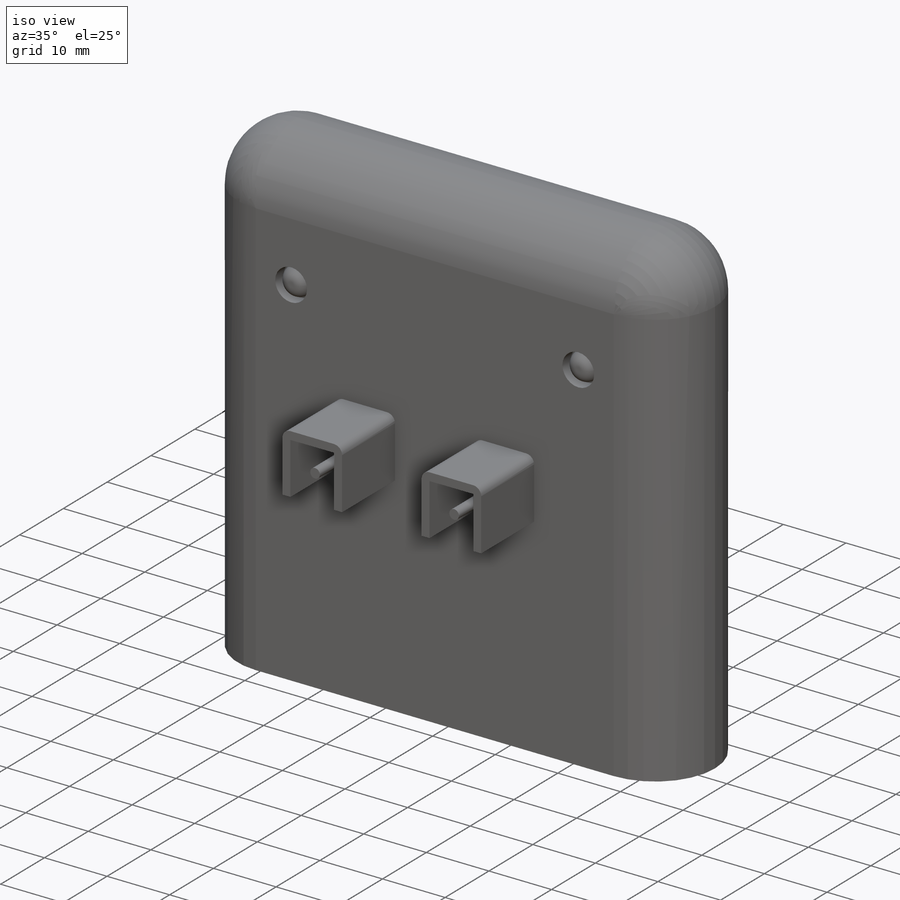
[diagram: iso view]
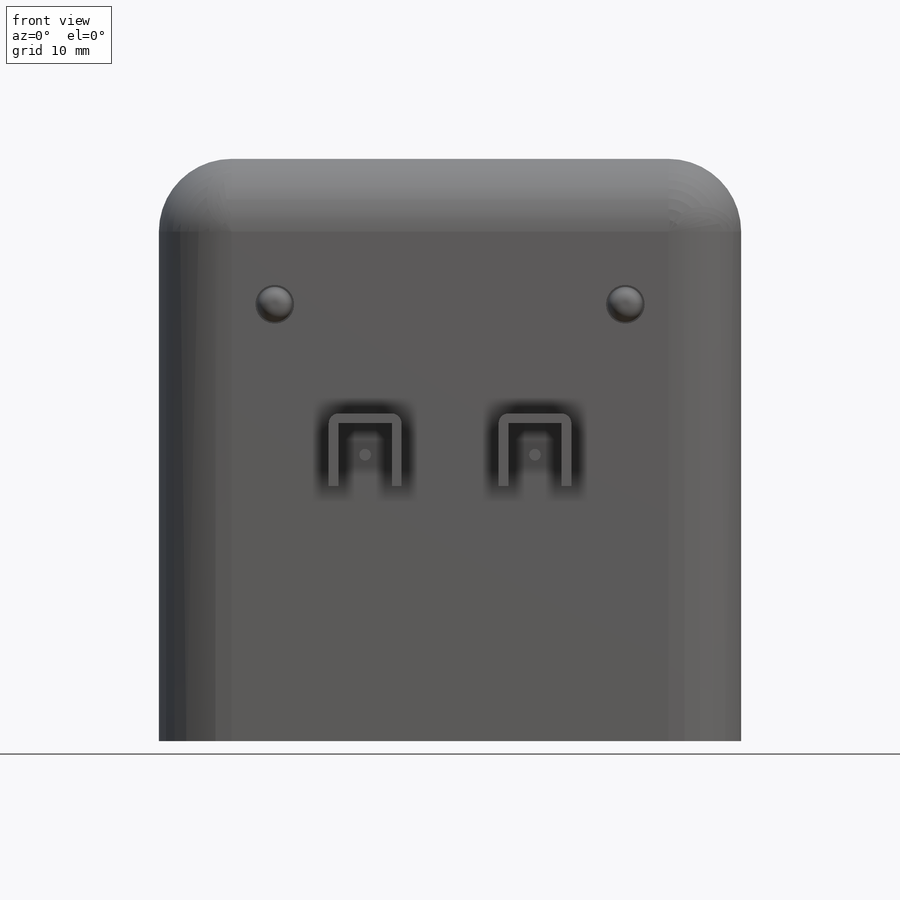
[diagram: front view]
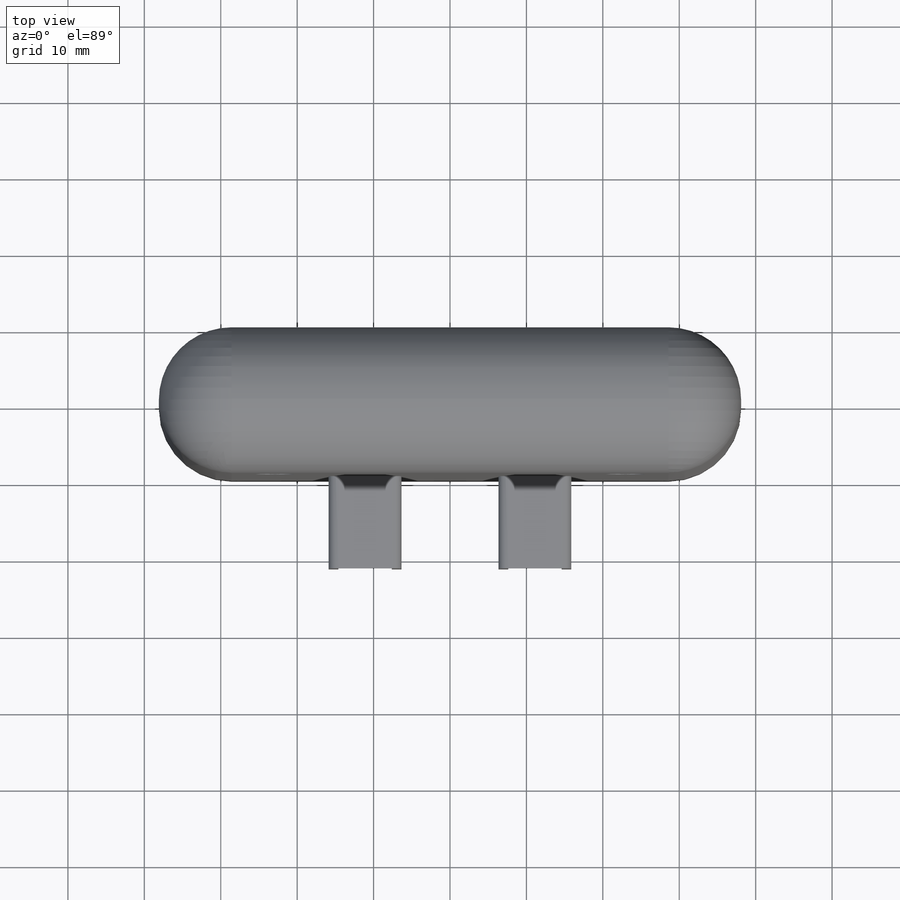
[diagram: top view]
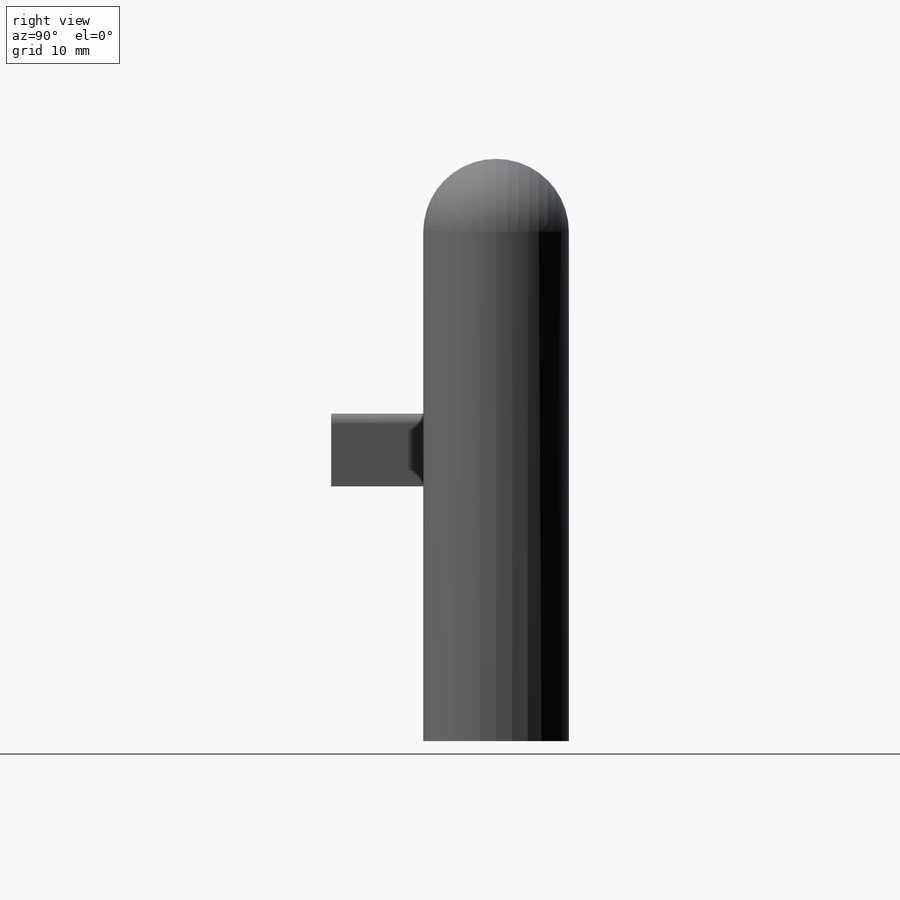
[diagram: right view]
SOLIDWORKS PART (.sldprt)
format: sldprt  version: not decoded by parser v0  size: 326,656 bytes
history: native  units: mm
features: fillet x6, sketch x5, extrude x4, material x1, cut_extrude x1 (+14 scaffold rows collapsed)
feature tree (31):
  scaffold x14  (default folders/planes/origin — collapsed)
  material  "Material <not specified>"
  sketch  "Sketch1"  dims[D1=76.2mm D2=19.05mm]
  extrude  "Extrude1"  Depth=76.2mm
  fillet  "Fillet1"  Radius=9.525mm
  fillet  "Fillet2"  Radius=9.525mm
  sketch  "Sketch2"  dims[D2=5.08mm D1=57.15mm]
  cut_extrude  "Extrude2"  Depth=1.905mm
  sketch  "Sketch3"  dims[D1=0.254mm]
  extrude  "Extrude3"  Depth=1.905mm
  fillet  "Fillet3"  Radius=1.905mm
  fillet  "Fillet5"  Radius=1.905mm
  sketch  "Sketch4"  dims[D1=9.525mm D2=9.525mm D3=6.35mm D4=38.1mm D5=1.27mm D6=1.27mm]
  extrude  "Extrude4"  Depth=12.065mm
  fillet  "Fillet6"  Radius=1.27mm
  fillet  "Fillet7"  Radius=1.27mm
  sketch  "Sketch5"  dims[D1=1.524mm]
  extrude  "Extrude5"  Depth=11.43mm
decode coverage: 16 of 16 modeling features carry decoded parameters
note: suppression state not decoded; provenance and decode notes live in map.json
